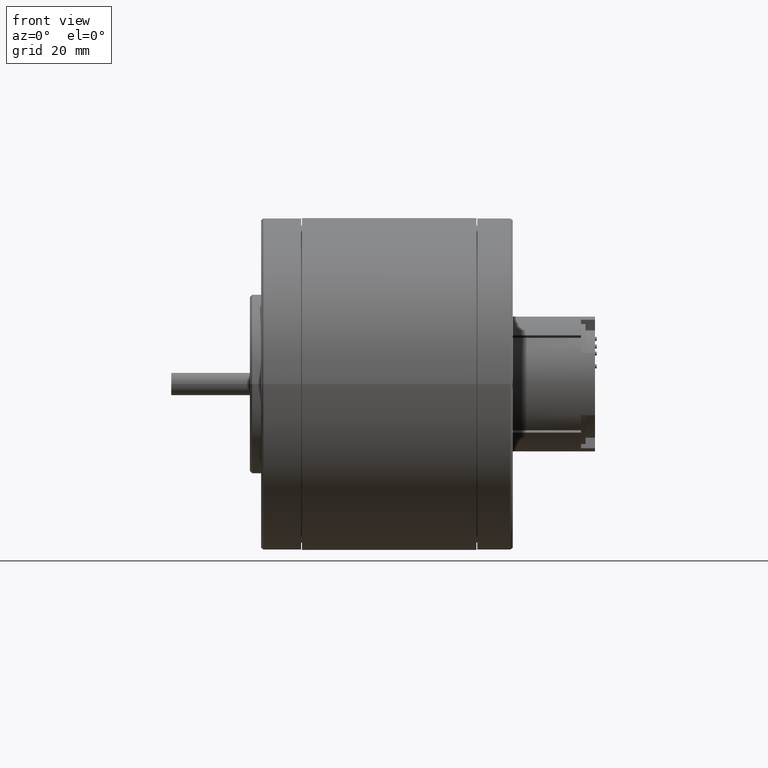
[diagram: clean part render]
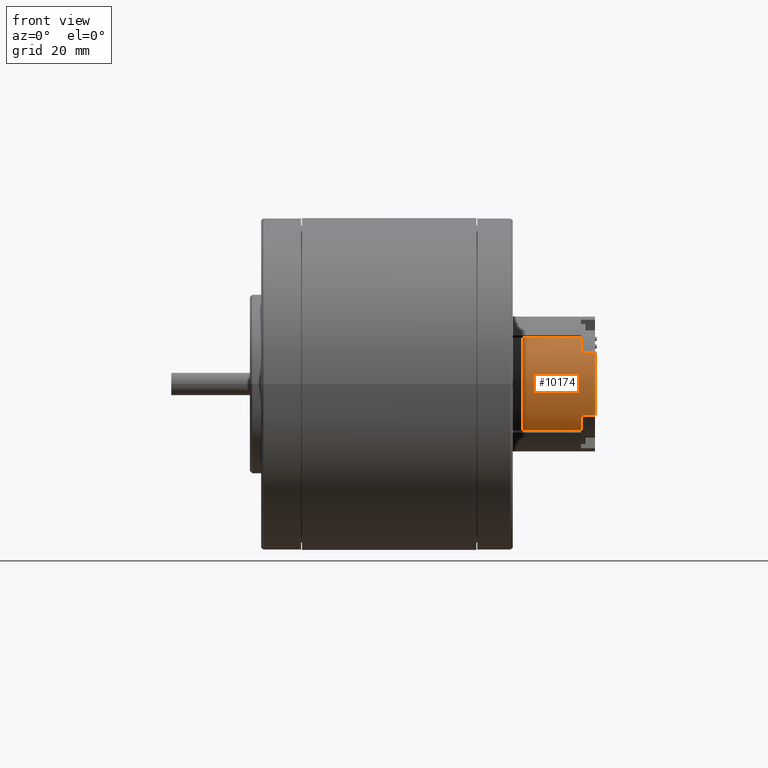
[diagram: same view with one face highlighted and labeled with its STEP entity id]
A machine part, front view. The second image highlights one B-rep face of the part: STEP entity #10174.
In plain terms, the highlighted cylindrical surface (partial cylindrical patch) has radius 15 mm, axis along (1, 0, 0).
Its self-contained STEP definition (entity closure, byte-faithful):
#6173=CARTESIAN_POINT('',(0.E0,0.E0,0.E0));
#6174=DIRECTION('',(-1.E0,0.E0,0.E0));
#6175=DIRECTION('',(0.E0,1.535904790012E-12,1.E0));
#6176=AXIS2_PLACEMENT_3D('',#6173,#6174,#6175);
#6178=CARTESIAN_POINT('',(0.E0,0.E0,0.E0));
#6179=DIRECTION('',(-1.E0,0.E0,0.E0));
#6180=DIRECTION('',(0.E0,-6.858213421576E-1,7.277699407375E-1));
#6181=AXIS2_PLACEMENT_3D('',#6178,#6179,#6180);
#6626=CARTESIAN_POINT('',(1.62E1,0.E0,0.E0));
#6627=DIRECTION('',(1.E0,0.E0,0.E0));
#6628=DIRECTION('',(0.E0,-1.545352729338E-11,1.E0));
#6629=AXIS2_PLACEMENT_3D('',#6626,#6627,#6628);
#6631=CARTESIAN_POINT('',(1.62E1,0.E0,0.E0));
#6632=DIRECTION('',(1.E0,0.E0,0.E0));
#6633=DIRECTION('',(0.E0,4.617486688633E-1,8.870108042200E-1));
#6634=AXIS2_PLACEMENT_3D('',#6631,#6632,#6633);
#6883=DIRECTION('',(-1.E0,0.E0,0.E0));
#6884=VECTOR('',#6883,3.1E0);
#6885=CARTESIAN_POINT('',(1.62E1,6.926230032950E0,1.330516206330E1));
#6886=LINE('',#6885,#6884);
#6905=CARTESIAN_POINT('',(1.31E1,0.E0,0.E0));
#6906=DIRECTION('',(1.E0,0.E0,0.E0));
#6907=DIRECTION('',(0.E0,6.858213378980E-1,7.277699447516E-1));
#6908=AXIS2_PLACEMENT_3D('',#6905,#6906,#6907);
#6986=CARTESIAN_POINT('',(1.31E1,0.E0,0.E0));
#6987=DIRECTION('',(1.E0,0.E0,0.E0));
#6988=DIRECTION('',(0.E0,-4.617486164100E-1,8.870108315254E-1));
#6989=AXIS2_PLACEMENT_3D('',#6986,#6987,#6988);
#6991=DIRECTION('',(1.E0,3.356986531248E-9,-2.560116789047E-9));
#6992=VECTOR('',#6991,1.310000005854E1);
#6993=CARTESIAN_POINT('',(-5.854169401676E-8,-1.028732010098E1,
1.091654909487E1));
#6994=LINE('',#6993,#6992);
#6995=DIRECTION('',(-1.E0,-8.189769775676E-10,7.624385228168E-10));
#6996=VECTOR('',#6995,1.310000005854E1);
#6997=CARTESIAN_POINT('',(1.31E1,1.028732006665E1,1.091654917347E1));
#6998=LINE('',#6997,#6996);
#6999=DIRECTION('',(1.E0,0.E0,0.E0));
#7000=VECTOR('',#6999,3.1E0);
#7001=CARTESIAN_POINT('',(1.31E1,-6.926229246154E0,1.330516247289E1));
#7002=LINE('',#7001,#7000);
#8425=CARTESIAN_POINT('',(1.62E1,-6.926229246154E0,1.330516247289E1));
#8426=VERTEX_POINT('',#8425);
#8427=CARTESIAN_POINT('',(1.62E1,-2.318039094007E-10,1.5E1));
#8428=VERTEX_POINT('',#8427);
#8429=CARTESIAN_POINT('',(1.62E1,6.926230032950E0,1.330516206330E1));
#8430=VERTEX_POINT('',#8429);
#8526=CARTESIAN_POINT('',(1.31E1,1.028732006665E1,1.091654917347E1));
#8528=VERTEX_POINT('',#8526);
#8535=CARTESIAN_POINT('',(1.31E1,6.926230032950E0,1.330516206330E1));
#8536=VERTEX_POINT('',#8535);
#8561=CARTESIAN_POINT('',(-5.854169311542E-8,1.028732005592E1,
1.091654918346E1));
#8563=VERTEX_POINT('',#8561);
#8591=CARTESIAN_POINT('',(0.E0,2.303757185018E-11,1.5E1));
#8592=VERTEX_POINT('',#8591);
#8593=CARTESIAN_POINT('',(0.E0,-1.028732013236E1,1.091654911106E1));
#8594=VERTEX_POINT('',#8593);
#8882=CARTESIAN_POINT('',(1.31E1,-1.028732005700E1,1.091654906133E1));
#8883=VERTEX_POINT('',#8882);
#8884=CARTESIAN_POINT('',(1.31E1,-6.926229246150E0,1.330516247288E1));
#8885=VERTEX_POINT('',#8884);
#10154=CARTESIAN_POINT('',(1.620000001E1,0.E0,0.E0));
#10155=DIRECTION('',(1.E0,0.E0,0.E0));
#10156=DIRECTION('',(0.E0,0.E0,-1.E0));
#10157=AXIS2_PLACEMENT_3D('',#10154,#10155,#10156);
#10158=CYLINDRICAL_SURFACE('',#10157,1.5E1);
#10159=ORIENTED_EDGE('',*,*,#9991,.F.);
#10160=ORIENTED_EDGE('',*,*,#9813,.T.);
#10161=ORIENTED_EDGE('',*,*,#9811,.T.);
#10163=ORIENTED_EDGE('',*,*,#10162,.F.);
#10165=ORIENTED_EDGE('',*,*,#10164,.T.);
#10167=ORIENTED_EDGE('',*,*,#10166,.F.);
#10168=ORIENTED_EDGE('',*,*,#9395,.T.);
#10169=ORIENTED_EDGE('',*,*,#9393,.T.);
#10170=ORIENTED_EDGE('',*,*,#10027,.F.);
#10171=ORIENTED_EDGE('',*,*,#10012,.T.);
#10172=EDGE_LOOP('',(#10159,#10160,#10161,#10163,#10165,#10167,#10168,#10169,
#10170,#10171));
#10173=FACE_OUTER_BOUND('',#10172,.F.);
#10174=ADVANCED_FACE('',(#10173),#10158,.T.);
#6177=CIRCLE('',#6176,1.5E1);
#6182=CIRCLE('',#6181,1.5E1);
#6630=CIRCLE('',#6629,1.5E1);
#6635=CIRCLE('',#6634,1.5E1);
#6909=CIRCLE('',#6908,1.5E1);
#6990=CIRCLE('',#6989,1.5E1);
#9393=EDGE_CURVE('',#8592,#8563,#6177,.T.);
#9395=EDGE_CURVE('',#8594,#8592,#6182,.T.);
#9811=EDGE_CURVE('',#8428,#8426,#6630,.T.);
#9813=EDGE_CURVE('',#8430,#8428,#6635,.T.);
#9991=EDGE_CURVE('',#8430,#8536,#6886,.T.);
#10012=EDGE_CURVE('',#8528,#8536,#6909,.T.);
#10027=EDGE_CURVE('',#8528,#8563,#6998,.T.);
#10162=EDGE_CURVE('',#8885,#8426,#7002,.T.);
#10164=EDGE_CURVE('',#8885,#8883,#6990,.T.);
#10166=EDGE_CURVE('',#8594,#8883,#6994,.T.);